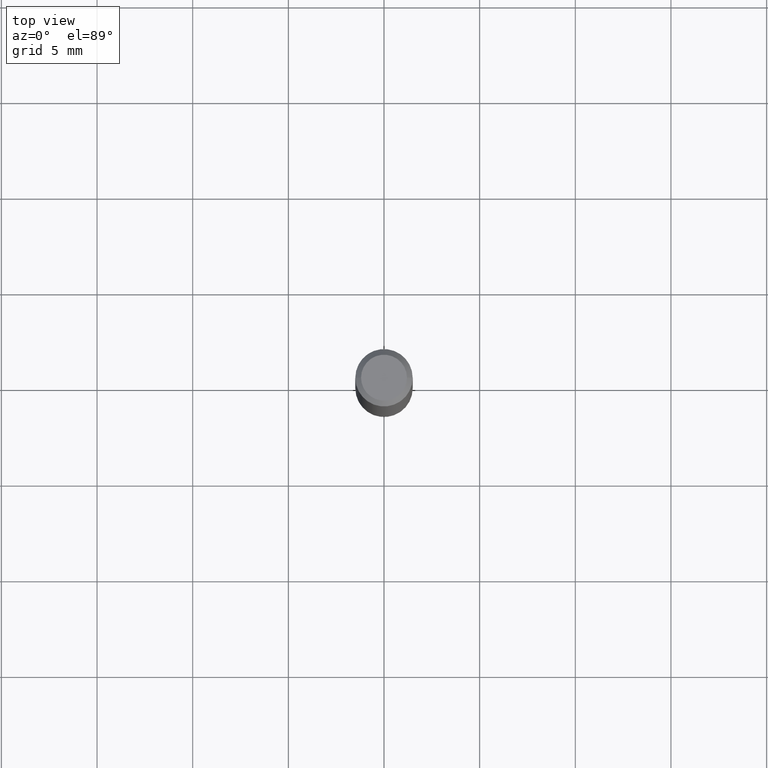
[diagram: clean part render]
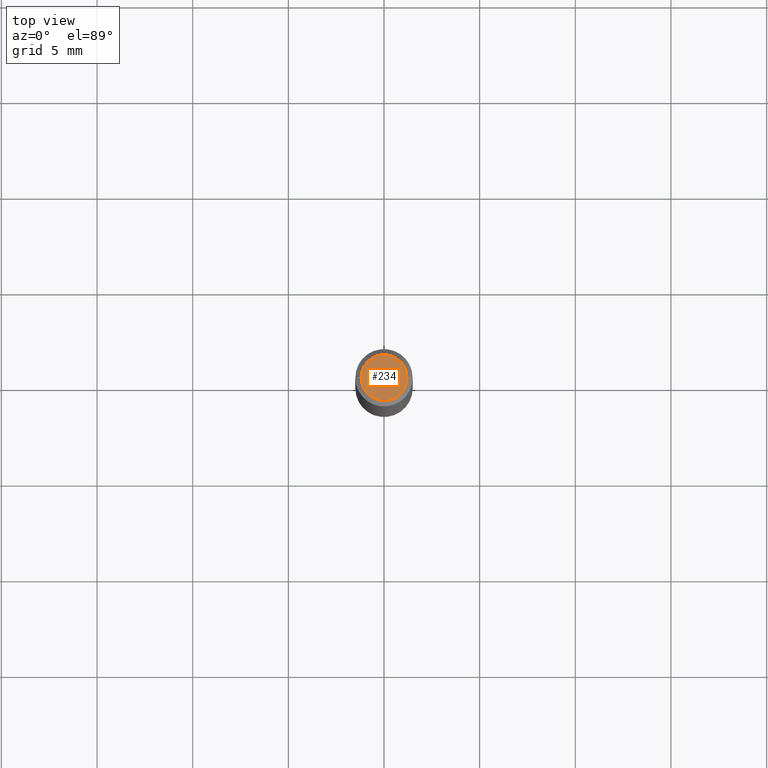
[diagram: same view with one face highlighted and labeled with its STEP entity id]
A machine part, top view. The second image highlights one B-rep face of the part: STEP entity #234.
In plain terms, the highlighted planar face has unit normal (0, -0, -1).
Its self-contained STEP definition (entity closure, byte-faithful):
#9 = DIRECTION ( 'NONE',  ( 2.438088387897960049E-29, -3.491481338843145188E-15, -1.000000000000000000 ) ) ;
#37 = DIRECTION ( 'NONE',  ( -2.445468806185136597E-29, 3.491481338843145583E-15, 1.000000000000000000 ) ) ;
#74 = CARTESIAN_POINT ( 'NONE',  ( 8.265746106709734507E-48, -1.180129479067563789E-33, -3.380025165646692144E-19 ) ) ;
#156 = EDGE_CURVE ( 'NONE', #407, #452, #490, .T. ) ;
#168 = AXIS2_PLACEMENT_3D ( 'NONE', #195, #279, #355 ) ;
#195 = CARTESIAN_POINT ( 'NONE',  ( 8.265746106709734507E-48, -1.180129479067563789E-33, -3.380025165646692144E-19 ) ) ;
#215 = DIRECTION ( 'NONE',  ( 1.000000000000000000, -6.982962677686266711E-15, 4.876185090822587894E-29 ) ) ;
#217 = CARTESIAN_POINT ( 'NONE',  ( -0.04724000000000000421, 3.504923541997677355E-16, -3.380025165670481712E-19 ) ) ;
#230 = AXIS2_PLACEMENT_3D ( 'NONE', #74, #37, #215 ) ;
#234 = ADVANCED_FACE ( 'NONE', ( #350 ), #315, .F. ) ;
#279 = DIRECTION ( 'NONE',  ( -2.445468806185136597E-29, 3.491481338843145583E-15, 1.000000000000000000 ) ) ;
#288 = CIRCLE ( 'NONE', #230, 0.04724000000000000421 ) ;
#315 = PLANE ( 'NONE',  #481 ) ;
#325 = ORIENTED_EDGE ( 'NONE', *, *, #156, .T. ) ;
#350 = FACE_OUTER_BOUND ( 'NONE', #368, .T. ) ;
#351 = EDGE_CURVE ( 'NONE', #452, #407, #288, .T. ) ;
#355 = DIRECTION ( 'NONE',  ( 1.000000000000000000, -6.982962677686266711E-15, 4.876185090822587894E-29 ) ) ;
#368 = EDGE_LOOP ( 'NONE', ( #373, #325 ) ) ;
#373 = ORIENTED_EDGE ( 'NONE', *, *, #351, .T. ) ;
#397 = DIRECTION ( 'NONE',  ( -1.000000000000000000, 6.982962677686265922E-15, -4.876176775795935793E-29 ) ) ;
#407 = VERTEX_POINT ( 'NONE', #487 ) ;
#452 = VERTEX_POINT ( 'NONE', #217 ) ;
#472 = CARTESIAN_POINT ( 'NONE',  ( 4.132873053354867254E-48, -5.900647395337818946E-34, -1.690012582823346072E-19 ) ) ;
#481 = AXIS2_PLACEMENT_3D ( 'NONE', #472, #9, #397 ) ;
#487 = CARTESIAN_POINT ( 'NONE',  ( 0.04724000000000000421, -3.852183633974369345E-16, -3.380025165621689721E-19 ) ) ;
#490 = CIRCLE ( 'NONE', #168, 0.04724000000000000421 ) ;